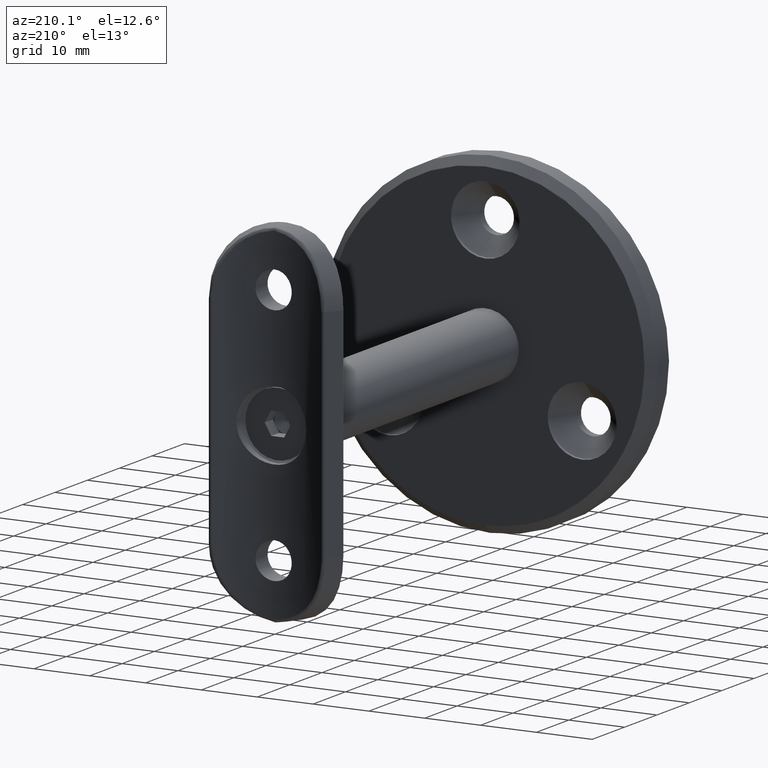
[diagram: clean part render]
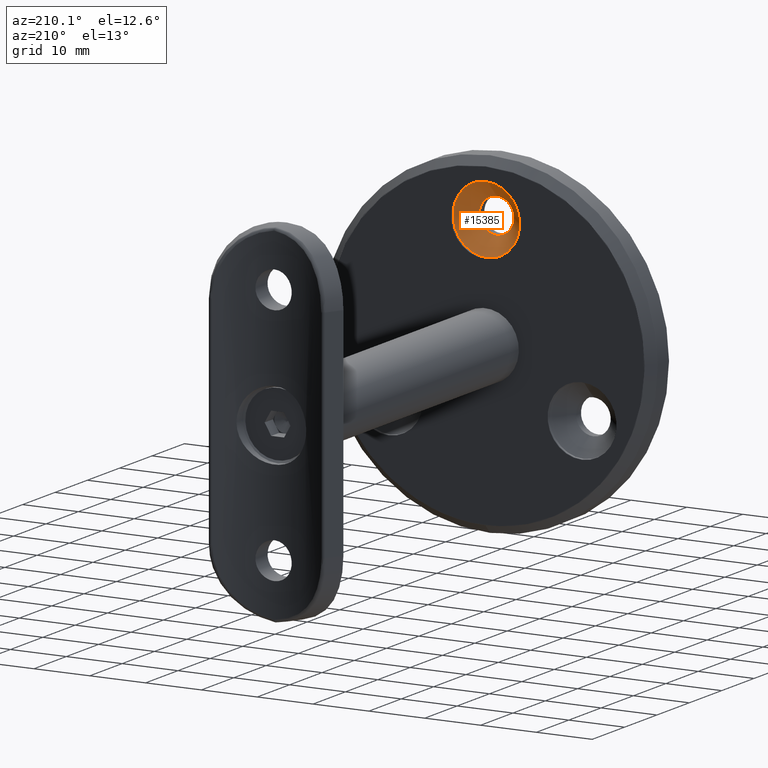
[diagram: same view with one face highlighted and labeled with its STEP entity id]
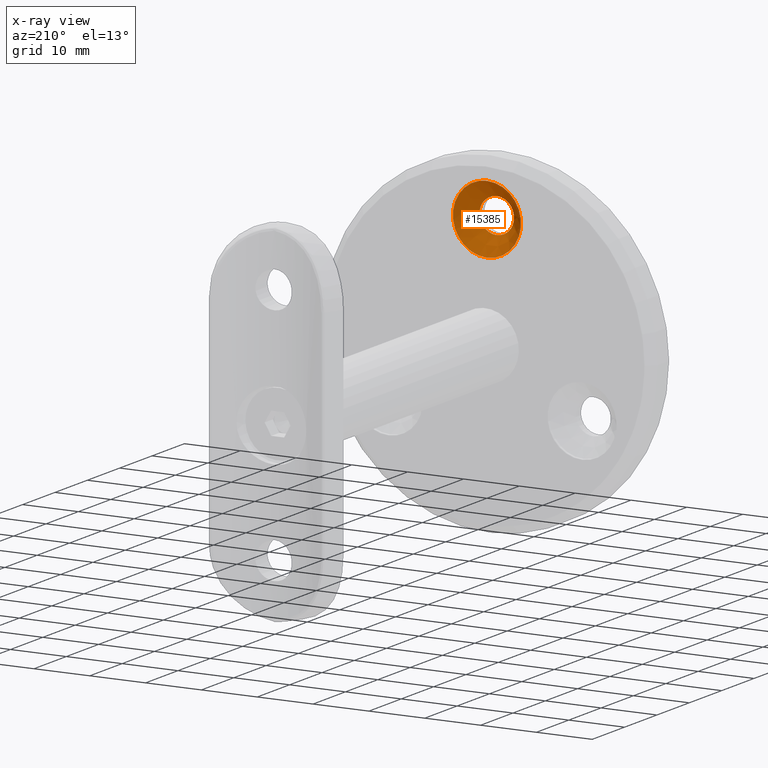
[diagram: x-ray of the same camera — body ghosted, the highlighted face saturated]
A machine part, auxiliary view. The second image highlights one B-rep face of the part: STEP entity #15385.
The next image is the same camera in x-ray: the body ghosted, the highlighted face saturated — about 0% of this face is hidden behind the body in this view.
In plain terms, the highlighted conical surface has half-angle 45 deg.
Its self-contained STEP definition (entity closure, byte-faithful):
#14 = CIRCLE ( 'NONE', #6140, 6.099999999999997868 ) ;
#967 = ORIENTED_EDGE ( 'NONE', *, *, #15838, .T. ) ;
#1319 = CARTESIAN_POINT ( 'NONE',  ( 0.000000000000000000, 4.500000000000000888, 20.00000000000000000 ) ) ;
#2654 = DIRECTION ( 'NONE',  ( -0.000000000000000000, 1.000000000000000000, -0.000000000000000000 ) ) ;
#3074 = CONICAL_SURFACE ( 'NONE', #10548, 6.099999999999997868, 0.7853981633974485010 ) ;
#3077 = DIRECTION ( 'NONE',  ( 0.000000000000000000, 0.000000000000000000, 1.000000000000000000 ) ) ;
#4258 = CARTESIAN_POINT ( 'NONE',  ( 0.000000000000000000, 1.500000000000001332, 23.09999999999999787 ) ) ;
#5675 = CARTESIAN_POINT ( 'NONE',  ( 0.000000000000000000, 4.500000000000000888, 20.00000000000000000 ) ) ;
#5707 = FACE_OUTER_BOUND ( 'NONE', #15946, .T. ) ;
#5799 = EDGE_LOOP ( 'NONE', ( #7171 ) ) ;
#6140 = AXIS2_PLACEMENT_3D ( 'NONE', #5675, #16116, #3077 ) ;
#6283 = FACE_BOUND ( 'NONE', #5799, .T. ) ;
#6490 = CARTESIAN_POINT ( 'NONE',  ( 0.000000000000000000, 1.500000000000001332, 20.00000000000000000 ) ) ;
#7171 = ORIENTED_EDGE ( 'NONE', *, *, #13217, .F. ) ;
#8755 = AXIS2_PLACEMENT_3D ( 'NONE', #6490, #2654, #11779 ) ;
#9062 = DIRECTION ( 'NONE',  ( 0.000000000000000000, 0.000000000000000000, 1.000000000000000000 ) ) ;
#9574 = CIRCLE ( 'NONE', #8755, 3.099999999999998757 ) ;
#10548 = AXIS2_PLACEMENT_3D ( 'NONE', #1319, #14231, #9062 ) ;
#11779 = DIRECTION ( 'NONE',  ( 0.000000000000000000, 0.000000000000000000, 1.000000000000000000 ) ) ;
#13217 = EDGE_CURVE ( 'NONE', #14222, #14222, #9574, .T. ) ;
#14211 = VERTEX_POINT ( 'NONE', #15999 ) ;
#14222 = VERTEX_POINT ( 'NONE', #4258 ) ;
#14231 = DIRECTION ( 'NONE',  ( -0.000000000000000000, 1.000000000000000000, -0.000000000000000000 ) ) ;
#15385 = ADVANCED_FACE ( 'NONE', ( #6283, #5707 ), #3074, .F. ) ;
#15838 = EDGE_CURVE ( 'NONE', #14211, #14211, #14, .T. ) ;
#15946 = EDGE_LOOP ( 'NONE', ( #967 ) ) ;
#15999 = CARTESIAN_POINT ( 'NONE',  ( 0.000000000000000000, 4.500000000000000888, 26.09999999999999787 ) ) ;
#16116 = DIRECTION ( 'NONE',  ( -0.000000000000000000, 1.000000000000000000, -0.000000000000000000 ) ) ;